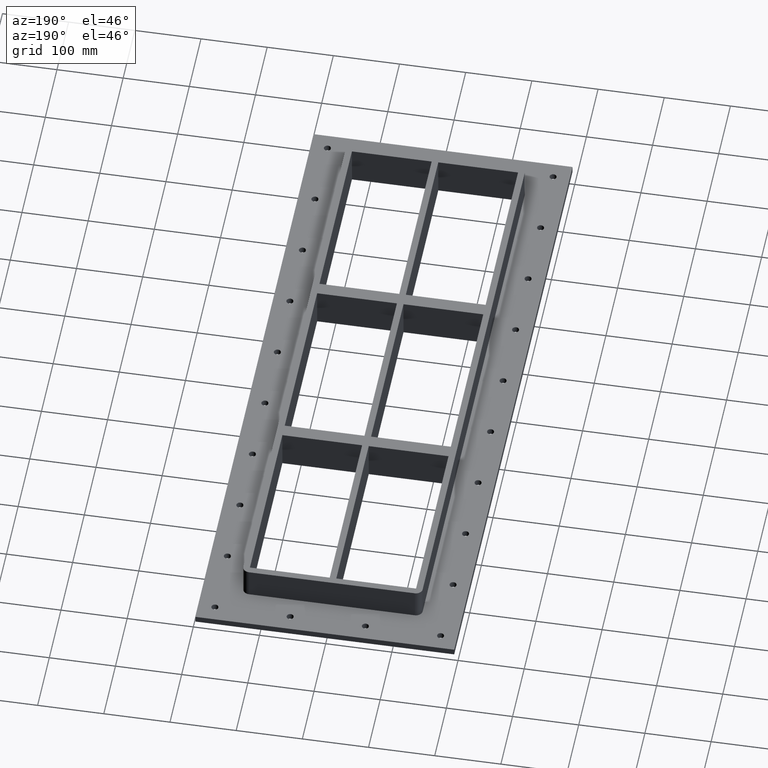
[diagram: clean part render]
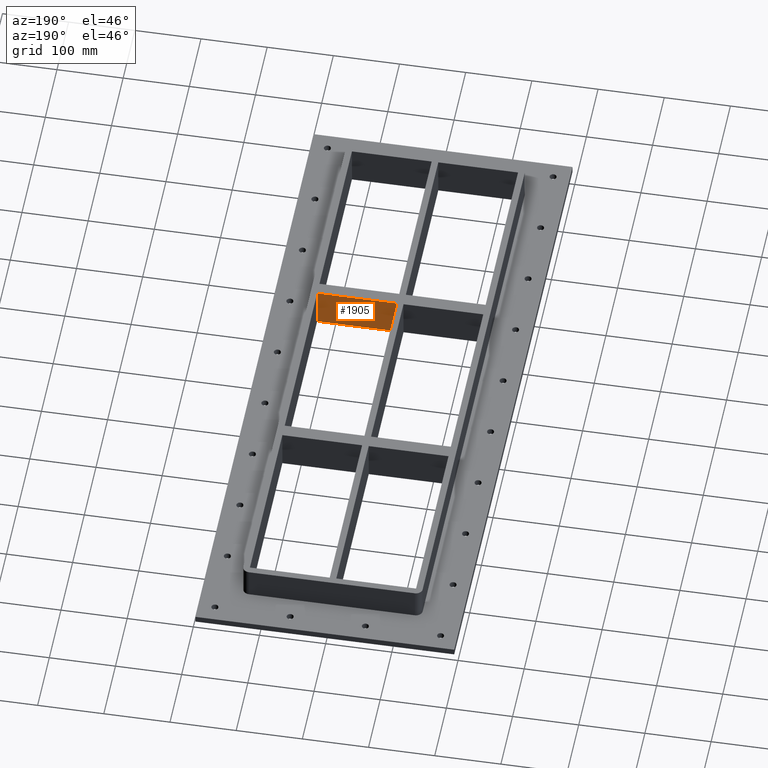
[diagram: same view with one face highlighted and labeled with its STEP entity id]
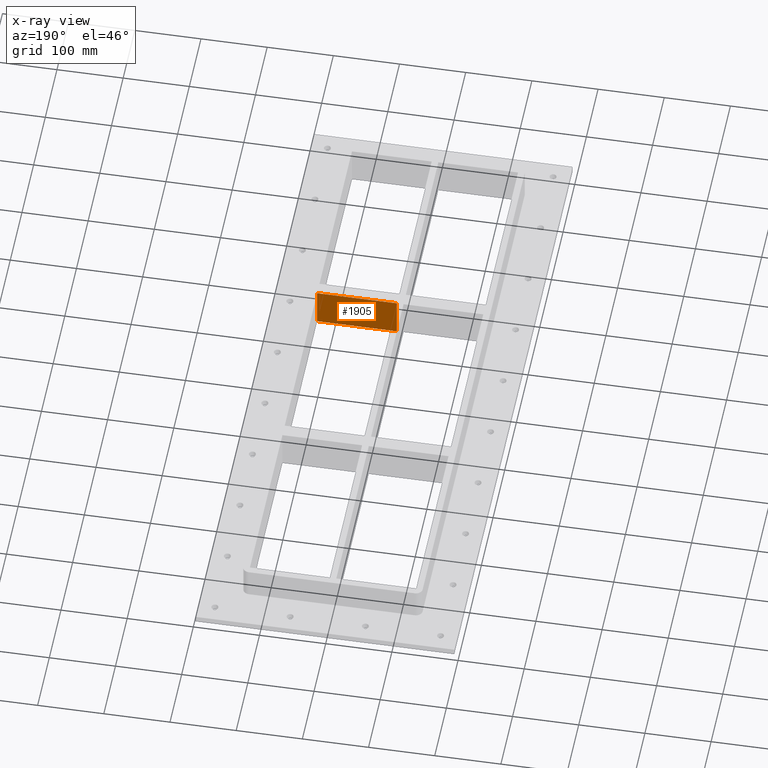
[diagram: x-ray of the same camera — body ghosted, the highlighted face saturated]
A machine part, auxiliary view. The second image highlights one B-rep face of the part: STEP entity #1905.
The next image is the same camera in x-ray: the body ghosted, the highlighted face saturated — about 0% of this face is hidden behind the body in this view.
In plain terms, the highlighted planar face has unit normal (0, -1, 0).
Its self-contained STEP definition (entity closure, byte-faithful):
#1478=CARTESIAN_POINT('',(5.000000000000066,-139.00000000000045,-30.0));
#1479=VERTEX_POINT('',#1478);
#1486=CARTESIAN_POINT('',(125.50000000000009,-139.0000000000006,-30.0));
#1487=VERTEX_POINT('',#1486);
#1488=CARTESIAN_POINT('',(5.000000000000057,-139.00000000000045,-30.0));
#1489=DIRECTION('',(1.0,0.0,0.0));
#1490=VECTOR('',#1489,120.50000000000003);
#1491=LINE('',#1488,#1490);
#1492=EDGE_CURVE('',#1479,#1487,#1491,.T.);
#1865=CARTESIAN_POINT('',(5.000000000000066,-139.00000000000045,30.0));
#1866=VERTEX_POINT('',#1865);
#1873=CARTESIAN_POINT('',(5.000000000000066,-139.00000000000045,30.0));
#1874=DIRECTION('',(0.0,0.0,-1.0));
#1875=VECTOR('',#1874,60.0);
#1876=LINE('',#1873,#1875);
#1877=EDGE_CURVE('',#1866,#1479,#1876,.T.);
#1882=CARTESIAN_POINT('',(125.50000000000009,-139.0000000000006,30.0));
#1883=DIRECTION('',(0.0,-1.0,0.0));
#1884=DIRECTION('',(-1.0,0.0,0.0));
#1885=AXIS2_PLACEMENT_3D('',#1882,#1883,#1884);
#1886=PLANE('',#1885);
#1887=ORIENTED_EDGE('',*,*,#1492,.F.);
#1888=ORIENTED_EDGE('',*,*,#1877,.F.);
#1889=CARTESIAN_POINT('',(125.50000000000009,-139.0000000000006,30.0));
#1890=VERTEX_POINT('',#1889);
#1891=CARTESIAN_POINT('',(125.50000000000009,-139.0000000000006,30.0));
#1892=DIRECTION('',(-1.0,0.0,0.0));
#1893=VECTOR('',#1892,120.50000000000003);
#1894=LINE('',#1891,#1893);
#1895=EDGE_CURVE('',#1890,#1866,#1894,.T.);
#1896=ORIENTED_EDGE('',*,*,#1895,.F.);
#1897=CARTESIAN_POINT('',(125.50000000000009,-139.0000000000006,30.0));
#1898=DIRECTION('',(0.0,0.0,-1.0));
#1899=VECTOR('',#1898,60.0);
#1900=LINE('',#1897,#1899);
#1901=EDGE_CURVE('',#1890,#1487,#1900,.T.);
#1902=ORIENTED_EDGE('',*,*,#1901,.T.);
#1903=EDGE_LOOP('',(#1887,#1888,#1896,#1902));
#1904=FACE_OUTER_BOUND('',#1903,.T.);
#1905=ADVANCED_FACE('',(#1904),#1886,.F.);